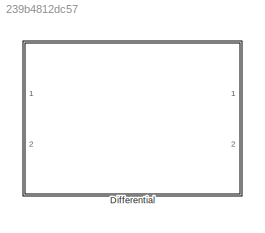
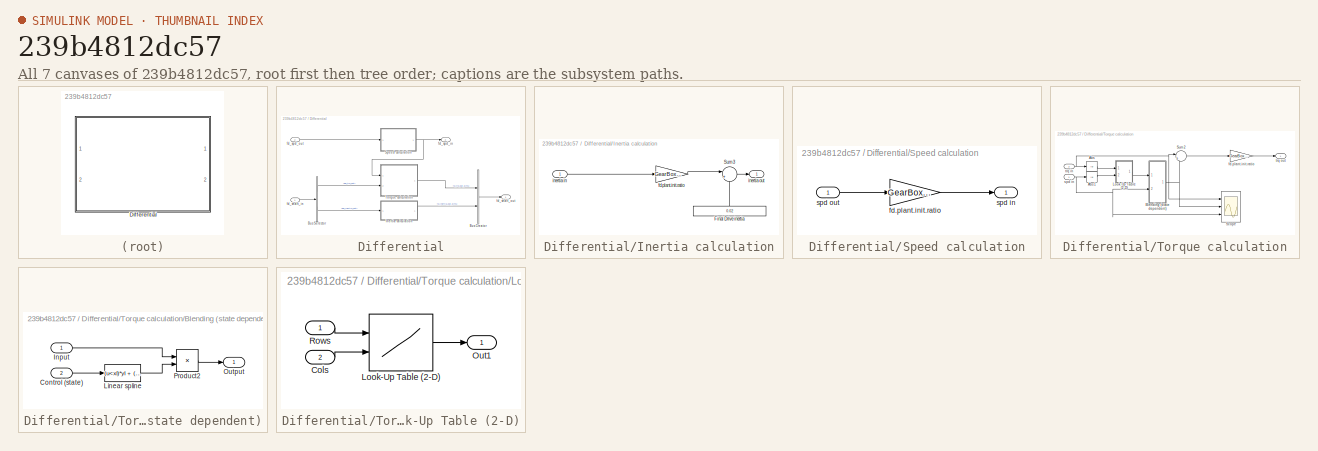
[diagram: thumbnail index - all 7 canvases of the model, root first then tree order]
MODEL slx_239b4812dc57
KIND library
CONFIG AbsTol = auto
CONFIG EnableMultiTasking = off
CONFIG FixedStep = auto
CONFIG MaxStep = auto
CONFIG MinStep = auto
CONFIG RelTol = 1e-3
CONFIG SampleTimeConstraint = Unconstrained
CONFIG Solver = VariableStepAuto
CONFIG SolverName = VariableStepAuto
CONFIG StartTime = 0.0
CONFIG StopTime = 10.0
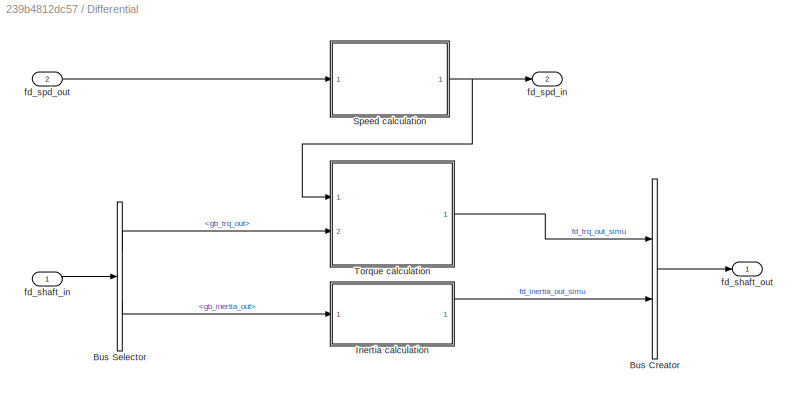
BLOCK [SubSystem] Differential
  Ports = [2, 2]
  RequestExecContextInheritance = off
  Variant = off
BLOCK [BusCreator] Differential/Bus Creator
  DisplayOption = bar
  InheritFromInputs = on
  Inputs = 2
  Ports = [2, 1]
BLOCK [BusSelector] Differential/Bus Selector
  OutputAsBus = off
  OutputSignals = gb_trq_out,gb_inertia_out
  Ports = [1, 2]
BLOCK [SubSystem] Differential/Inertia calculation
  Ports = [1, 1]
  RequestExecContextInheritance = off
  Variant = off
BLOCK [Constant] Differential/Inertia calculation/Final Drive inertia
  Value = 0.02
BLOCK [Sum] Differential/Inertia calculation/Sum3
  IconShape = round
  Inputs = |++
  Ports = [2, 1]
BLOCK [Gain] Differential/Inertia calculation/fd.plant.init.ratio 
  Gain = GearBox.L45.FinalDriveRatio
BLOCK [Inport] Differential/Inertia calculation/inertia in
  IconDisplay = Port number
BLOCK [Outport] Differential/Inertia calculation/inertia out
  IconDisplay = Port number
BLOCK [SubSystem] Differential/Speed calculation
  Ports = [1, 1]
  RequestExecContextInheritance = off
  Variant = off
BLOCK [Gain] Differential/Speed calculation/fd.plant.init.ratio
  Gain = GearBox.L45.FinalDriveRatio
BLOCK [Outport] Differential/Speed calculation/spd in
  IconDisplay = Port number
BLOCK [Inport] Differential/Speed calculation/spd out
  IconDisplay = Port number
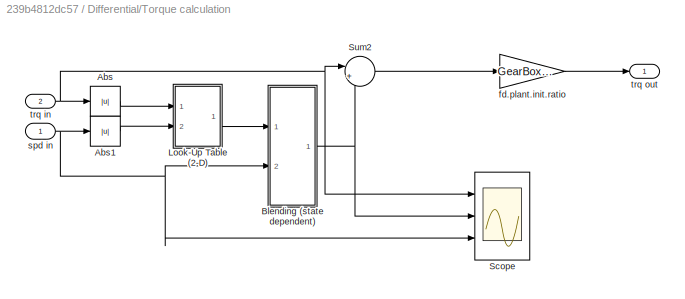
BLOCK [SubSystem] Differential/Torque calculation
  Ports = [2, 1]
  RequestExecContextInheritance = off
  Variant = off
BLOCK [Abs] Differential/Torque calculation/Abs
BLOCK [Abs] Differential/Torque calculation/Abs1
BLOCK [SubSystem] Differential/Torque calculation/Blending (state dependent)
  Ports = [2, 1]
  RequestExecContextInheritance = off
  ShowPortLabels = none
  Variant = off
BLOCK [Inport] Differential/Torque calculation/Blending (state dependent)/Control (state)
  IconDisplay = Port number
  Port = 2
BLOCK [Inport] Differential/Torque calculation/Blending (state dependent)/Input
  IconDisplay = Port number
BLOCK [Fcn] Differential/Torque calculation/Blending (state dependent)/Linear spline
  Expr = (u<xl)*yl + (xl<=u)*(u<xc)*((yc-yl)*(u-xl)/(xc-xl)+yl) + (xc<=u)*(u<xr)*((yc-yr)*(u-xr)/(xc-xr)+yr) + (xr<=u)*yr
BLOCK [Outport] Differential/Torque calculation/Blending (state dependent)/Output
  IconDisplay = Port number
BLOCK [Product] Differential/Torque calculation/Blending (state dependent)/Product2
  Ports = [2, 1]
  RndMeth = Floor
BLOCK [SubSystem] Differential/Torque calculation/Look-Up Table (2-D)
  Ports = [2, 1]
  RequestExecContextInheritance = off
  Variant = off
BLOCK [Inport] Differential/Torque calculation/Look-Up Table (2-D)/Cols
  IconDisplay = Port number
  Port = 2
BLOCK [Lookup2D] Differential/Torque calculation/Look-Up Table (2-D)/Look-Up Table (2-D)
  ColumnIndex = y
  RowIndex = x
  Table = t
BLOCK [Outport] Differential/Torque calculation/Look-Up Table (2-D)/Out1
  IconDisplay = Port number
BLOCK [Inport] Differential/Torque calculation/Look-Up Table (2-D)/Rows
  IconDisplay = Port number
BLOCK [Scope] Differential/Torque calculation/Scope
  NumInputPorts = 3
  Ports = [3]
  ScopeSpecificationString = Simulink.scopes.TimeScopeBlockCfg('CurrentConfiguration', extmgr.ConfigurationSet(extmgr.Configuration('Core','General UI',true),extmgr.Configuration('Core','Source UI',true),extmgr.Configuration('Sources','WiredSimulink',true,'DataLoggingVariableName','ScopeData3','DataLoggingLimitDataPoints',true,'DataLoggingSaveFormat','Array','DataLoggingDecimation','1','DataLoggingDecimateData',true),extmgr.C...<+3000ch>
BLOCK [Sum] Differential/Torque calculation/Sum2
  IconShape = round
  Inputs = |+-
  Ports = [2, 1]
BLOCK [Gain] Differential/Torque calculation/fd.plant.init.ratio
  Gain = GearBox.L45.FinalDriveRatio
BLOCK [Inport] Differential/Torque calculation/spd in
  IconDisplay = Port number
BLOCK [Inport] Differential/Torque calculation/trq in
  IconDisplay = Port number
  Port = 2
BLOCK [Outport] Differential/Torque calculation/trq out
  IconDisplay = Port number
BLOCK [Inport] Differential/fd_shaft_in
  IconDisplay = Port number
BLOCK [Outport] Differential/fd_shaft_out
  IconDisplay = Port number
BLOCK [Outport] Differential/fd_spd_in
  IconDisplay = Port number
  Port = 2
BLOCK [Inport] Differential/fd_spd_out
  IconDisplay = Port number
  Port = 2
LINE Differential/Bus Creator:1 -> Differential/fd_shaft_out:1
LINE Differential/Bus Selector:1 -> Differential/Torque calculation:2
LINE Differential/Bus Selector:2 -> Differential/Inertia calculation:1
LINE Differential/Inertia calculation/Final Drive inertia:1 -> Differential/Inertia calculation/Sum3:2
LINE Differential/Inertia calculation/Sum3:1 -> Differential/Inertia calculation/inertia out:1
LINE Differential/Inertia calculation/fd.plant.init.ratio :1 -> Differential/Inertia calculation/Sum3:1
LINE Differential/Inertia calculation/inertia in:1 -> Differential/Inertia calculation/fd.plant.init.ratio :1
LINE Differential/Inertia calculation:1 -> Differential/Bus Creator:2
LINE Differential/Speed calculation/fd.plant.init.ratio:1 -> Differential/Speed calculation/spd in:1
LINE Differential/Speed calculation/spd out:1 -> Differential/Speed calculation/fd.plant.init.ratio:1
NET Differential/Speed calculation:1 -> Differential/Torque calculation:1, Differential/fd_spd_in:1
LINE Differential/Torque calculation/Abs1:1 -> Differential/Torque calculation/Look-Up Table (2-D):2
LINE Differential/Torque calculation/Abs:1 -> Differential/Torque calculation/Look-Up Table (2-D):1
LINE Differential/Torque calculation/Blending (state dependent)/Control (state):1 -> Differential/Torque calculation/Blending (state dependent)/Linear spline:1
LINE Differential/Torque calculation/Blending (state dependent)/Input:1 -> Differential/Torque calculation/Blending (state dependent)/Product2:1
LINE Differential/Torque calculation/Blending (state dependent)/Linear spline:1 -> Differential/Torque calculation/Blending (state dependent)/Product2:2
LINE Differential/Torque calculation/Blending (state dependent)/Product2:1 -> Differential/Torque calculation/Blending (state dependent)/Output:1
NET Differential/Torque calculation/Blending (state dependent):1 -> Differential/Torque calculation/Scope:2, Differential/Torque calculation/Sum2:2
LINE Differential/Torque calculation/Look-Up Table (2-D)/Cols:1 -> Differential/Torque calculation/Look-Up Table (2-D)/Look-Up Table (2-D):2
LINE Differential/Torque calculation/Look-Up Table (2-D)/Look-Up Table (2-D):1 -> Differential/Torque calculation/Look-Up Table (2-D)/Out1:1
LINE Differential/Torque calculation/Look-Up Table (2-D)/Rows:1 -> Differential/Torque calculation/Look-Up Table (2-D)/Look-Up Table (2-D):1
LINE Differential/Torque calculation/Look-Up Table (2-D):1 -> Differential/Torque calculation/Blending (state dependent):1
LINE Differential/Torque calculation/Sum2:1 -> Differential/Torque calculation/fd.plant.init.ratio:1
LINE Differential/Torque calculation/fd.plant.init.ratio:1 -> Differential/Torque calculation/trq out:1
NET Differential/Torque calculation/spd in:1 -> Differential/Torque calculation/Abs1:1, Differential/Torque calculation/Blending (state dependent):2, Differential/Torque calculation/Scope:3
NET Differential/Torque calculation/trq in:1 -> Differential/Torque calculation/Abs:1, Differential/Torque calculation/Scope:1, Differential/Torque calculation/Sum2:1
LINE Differential/Torque calculation:1 -> Differential/Bus Creator:1
LINE Differential/fd_shaft_in:1 -> Differential/Bus Selector:1
LINE Differential/fd_spd_out:1 -> Differential/Speed calculation:1
note: NET lines group one-source signal fan-out (src -> all destinations, sorted); 1:1 wires keep LINE
